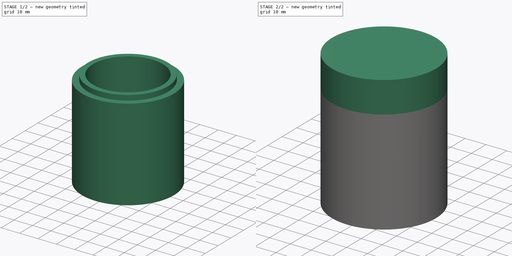
[diagram: build sequence overview — one tinted view per stage of 2, left to right]
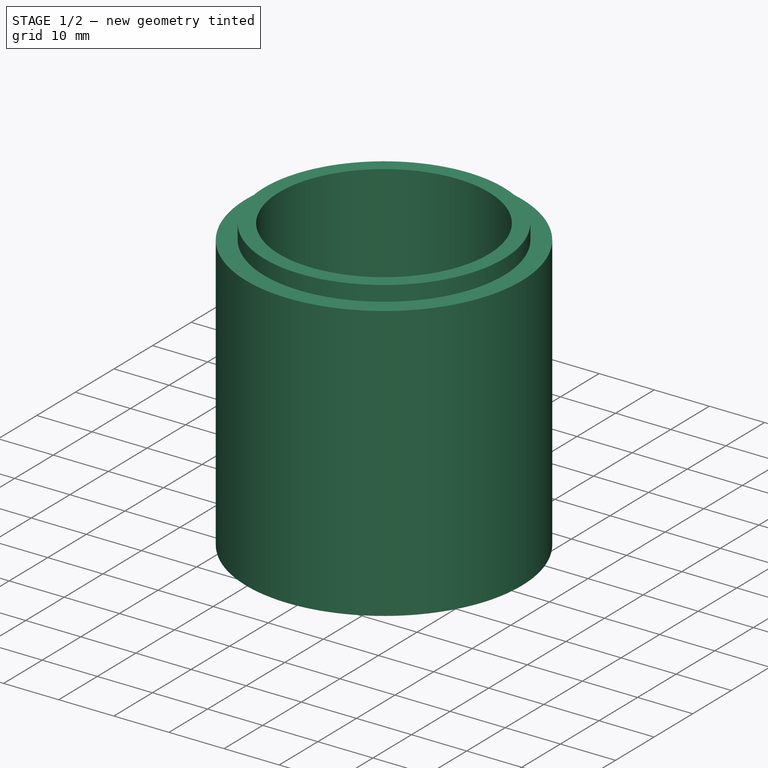
[diagram: stage 1 of 2 — iso view after this stage's code; geometry added in this stage tinted green]
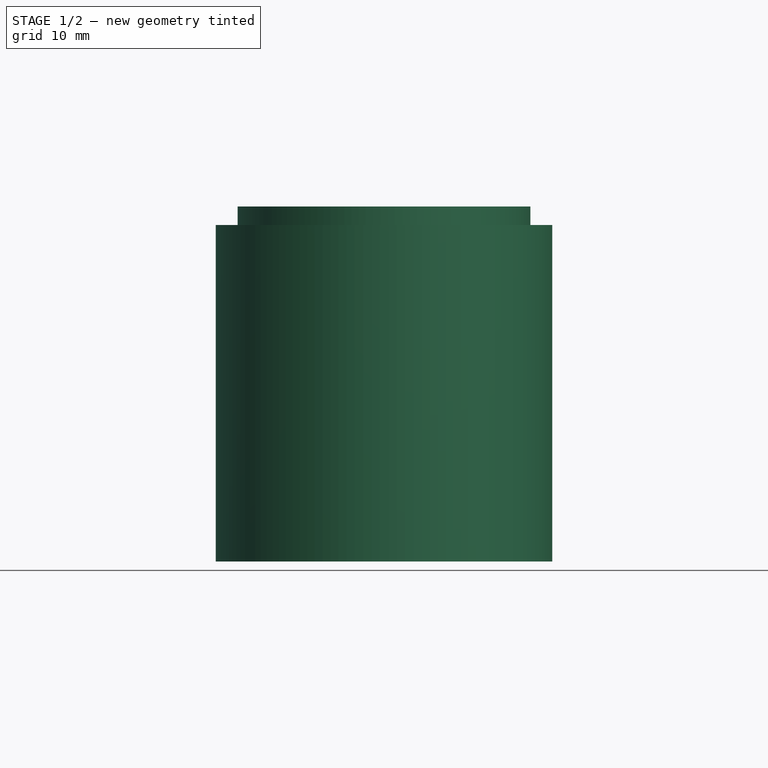
[diagram: stage 1 of 2 — front view after this stage's code; geometry added in this stage tinted green]
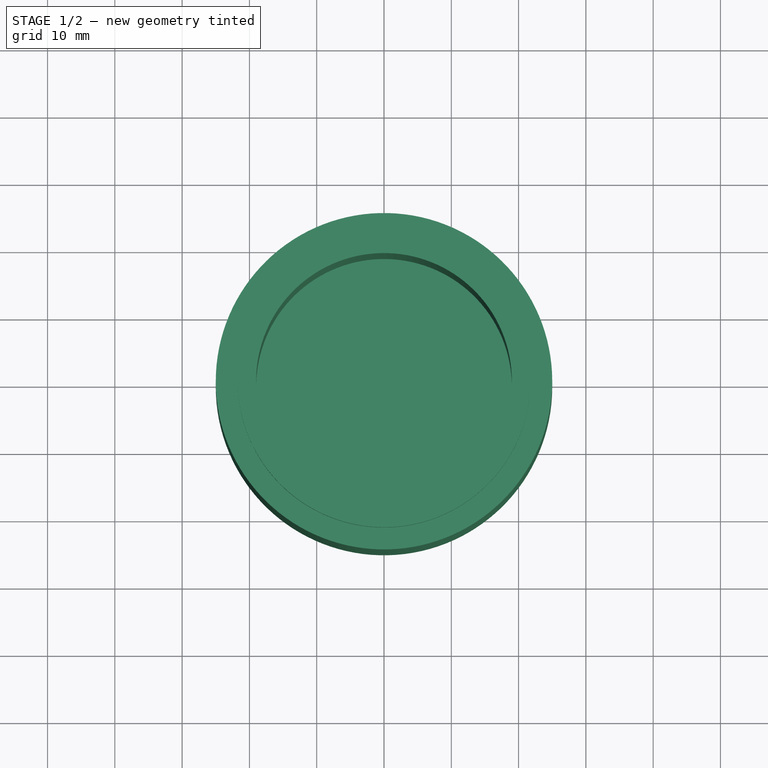
[diagram: stage 1 of 2 — top view after this stage's code; geometry added in this stage tinted green]
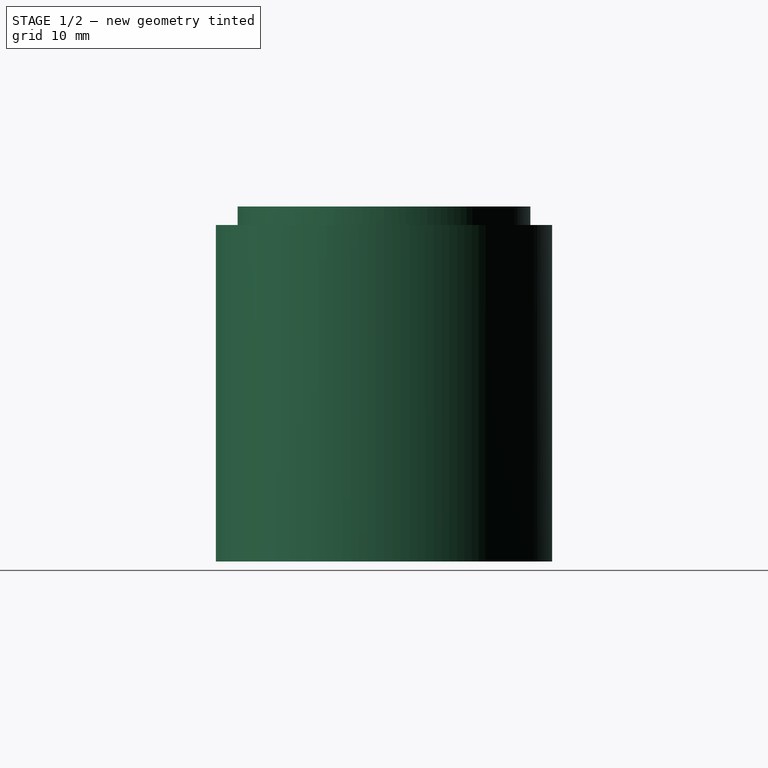
[diagram: stage 1 of 2 — right view after this stage's code; geometry added in this stage tinted green]
FCSTD DOCUMENT  (FreeCAD 0.21RUnknown)
Label: part9
License: All rights reserved
LicenseURL: http://en.wikipedia.org/wiki/All_rights_reserved
objects: PartDesign::Body×4, Sketcher::SketchObject×2, PartDesign::Revolution×2, PartDesign::FeatureBase×2, PartDesign::SubShapeBinder×1
note: 13 computed .brp shape members not serialized (recipe doc carries the construction recipe); baked Part::Feature solids carry a one-line shape summary decoded from their .brp

FEATURE [Sketcher::SketchObject] Sketch
  FullyConstrained = true
  MapMode = 5
  Placement = pos=(0,0,0) rot=(1,0,0;1.5708rad)
  Support = -> [XZ_Plane]
  sketch-geometry (8):
    g0: LineSegment StartX=0 StartY=15 StartZ=0 EndX=-25 EndY=15 EndZ=0
    g1: LineSegment StartX=-25 StartY=15 StartZ=0 EndX=-25 EndY=0 EndZ=0
    g2: LineSegment StartX=-25 StartY=0 StartZ=0 EndX=-22 EndY=0 EndZ=0
    g3: LineSegment StartX=-22 StartY=0 StartZ=0 EndX=-22 EndY=3 EndZ=0
    g4: LineSegment StartX=-22 StartY=3 StartZ=0 EndX=-19 EndY=3 EndZ=0
    g5: LineSegment StartX=-19 StartY=3 StartZ=0 EndX=-19 EndY=13 EndZ=0
    g6: LineSegment StartX=-19 StartY=13 StartZ=0 EndX=0 EndY=13 EndZ=0
    g7: LineSegment StartX=0 StartY=13 StartZ=0 EndX=0 EndY=15 EndZ=0
  constraints (24):
    c: PointOnObject(g0,g-2)
    c: Horizontal(g0)
    c: Coincident(g0,g1)
    c: Vertical(g1)
    c: Coincident(g1,g2)
    c: Horizontal(g2)
    c: Coincident(g2,g3)
    c: Vertical(g3)
    c: Coincident(g3,g4)
    c: Horizontal(g4)
    c: Coincident(g4,g5)
    c: Coincident(g5,g6)
    c: PointOnObject(g6,g-2)
    c: Horizontal(g6)
    c: Coincident(g6,g7)
    c: Coincident(g7,g0)
    c: Vertical(g5)
    c: PointOnObject(g1,g-1)
    c: DistanceX(g0,g0) = 25
    c: DistanceY(g1,g1) = 15
    c: Equal(g2,g4)
    c: Equal(g3,g4)
    c: DistanceX(g2,g2) = 3
    c: DistanceY(g7,g7) = 2
FEATURE [PartDesign::Revolution] Revolution
  Angle = 360
  Axis = (0,2e-16,1)
  Base = (0,0,0)
  Placement = pos=(0,0,0) rot=(1,0,0;1.5708rad)
  Profile = -> Sketch
  ReferenceAxis = -> Sketch [V_Axis]
FEATURE [PartDesign::Body] Body  label="top"
  Group = -> [Sketch,Revolution]
  Origin = -> Origin
  Tip = -> Revolution
FEATURE [PartDesign::SubShapeBinder] Binder
  BindCopyOnChange = 0
  BindMode = 0
  ClaimChildren = false
  Context = -> Body001 [Binder.]
  Fuse = false
  MakeFace = true
  OffsetFill = false
  OffsetIntersection = false
  OffsetJoinType = 0
  OffsetOpenResult = false
  PartialLoad = false
  Relative = true
  Support = -> [Body[Sketch.Edge3,Sketch.Edge4,Sketch.Edge5]]
  _Version = 2
FEATURE [Sketcher::SketchObject] Sketch001
  ExternalGeometry = -> [Binder]
  FullyConstrained = true
  MapMode = 5
  Placement = pos=(0,0,0) rot=(1,0,0;1.5708rad)
  Support = -> [XZ_Plane001]
  sketch-geometry (8):
    g0: LineSegment StartX=0 StartY=-50 StartZ=0 EndX=-25 EndY=-50 EndZ=0
    g1: LineSegment StartX=-25 StartY=-50 StartZ=0 EndX=-25 EndY=0 EndZ=0
    g2: LineSegment StartX=-25 StartY=0 StartZ=0 EndX=-21.75 EndY=0 EndZ=0
    g3: LineSegment StartX=-21.75 StartY=0 StartZ=0 EndX=-21.75 EndY=2.75 EndZ=0
    g4: LineSegment StartX=-21.75 StartY=2.75 StartZ=0 EndX=-19 EndY=2.75 EndZ=0
    g5: LineSegment StartX=-19 StartY=2.75 StartZ=0 EndX=-19 EndY=-48 EndZ=0
    g6: LineSegment StartX=-19 StartY=-48 StartZ=0 EndX=0 EndY=-48 EndZ=0
    g7: LineSegment StartX=0 StartY=-48 StartZ=0 EndX=0 EndY=-50 EndZ=0
  constraints (23):
    c: PointOnObject(g0,g-2)
    c: Horizontal(g0)
    c: Coincident(g0,g1)
    c: Coincident(g1,g-5)
    c: Vertical(g1)
    c: Coincident(g1,g2)
    c: PointOnObject(g2,g-1)
    c: Coincident(g2,g3)
    c: Coincident(g3,g4)
    c: Horizontal(g4)
    c: Coincident(g4,g5)
    c: Vertical(g5)
    c: Coincident(g5,g6)
    c: PointOnObject(g6,g-2)
    c: Horizontal(g6)
    c: Coincident(g6,g7)
    c: Coincident(g7,g0)
    c: DistanceX(g-5,g2) = 0.25
    c: Vertical(g3)
    c: DistanceY(g3,g-4) = 0.25
    c: DistanceY(g1,g1) = 50
    c: Vertical(g4,g-3)
    c: DistanceY(g7,g7) = 2
FEATURE [PartDesign::Revolution] Revolution001
  Angle = 360
  Axis = (0,2e-16,1)
  Base = (0,0,0)
  Placement = pos=(0,0,0) rot=(1,0,0;1.5708rad)
  Profile = -> Sketch001
  ReferenceAxis = -> Sketch001 [V_Axis]
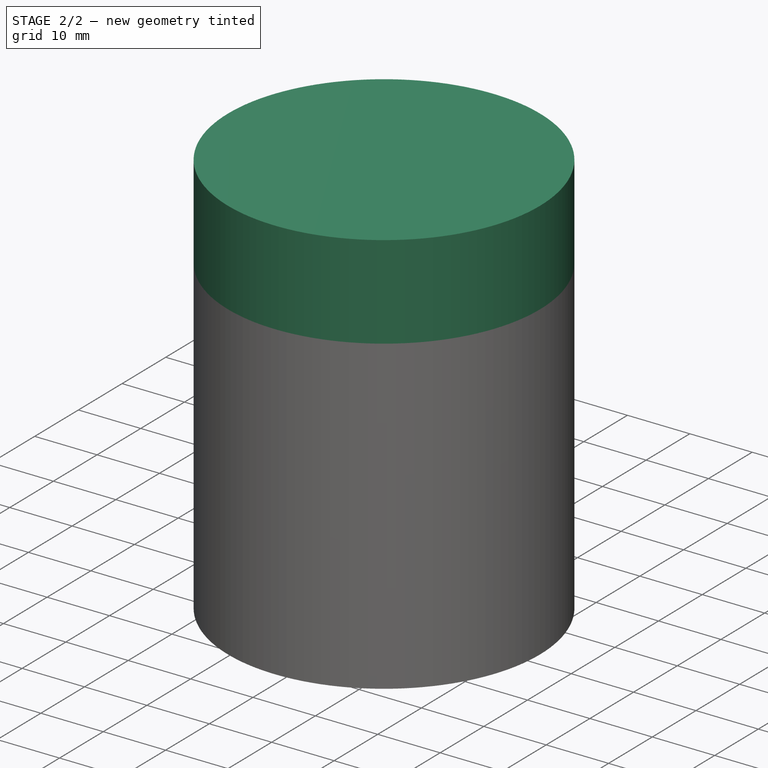
[diagram: stage 2 of 2 — iso view after this stage's code; geometry added in this stage tinted green]
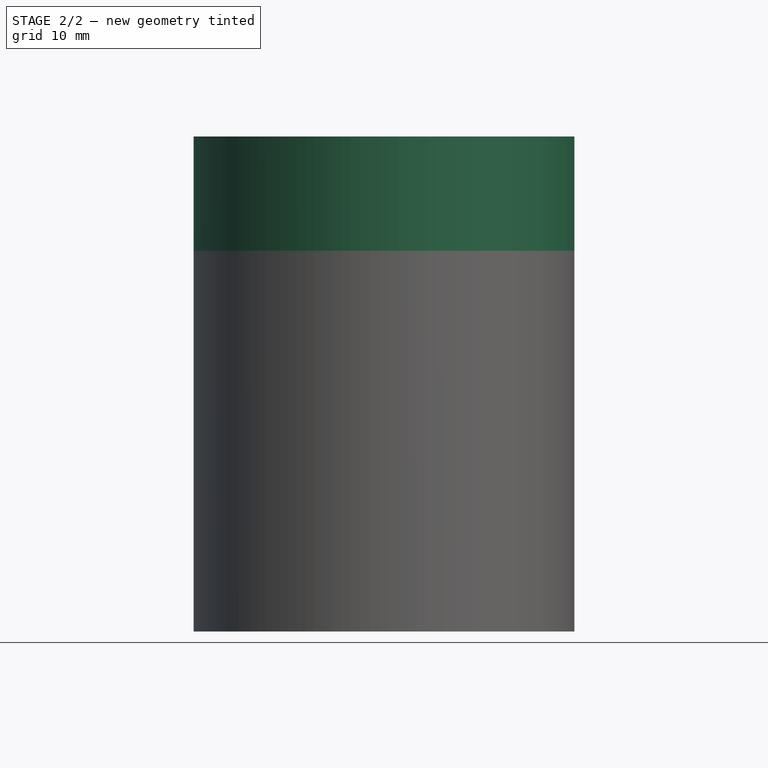
[diagram: stage 2 of 2 — front view after this stage's code; geometry added in this stage tinted green]
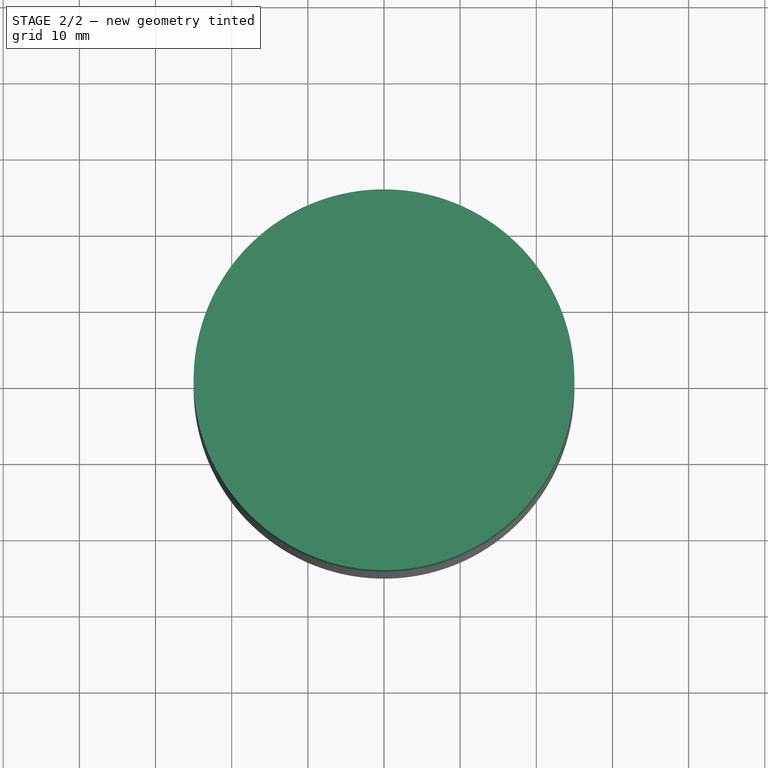
[diagram: stage 2 of 2 — top view after this stage's code; geometry added in this stage tinted green]
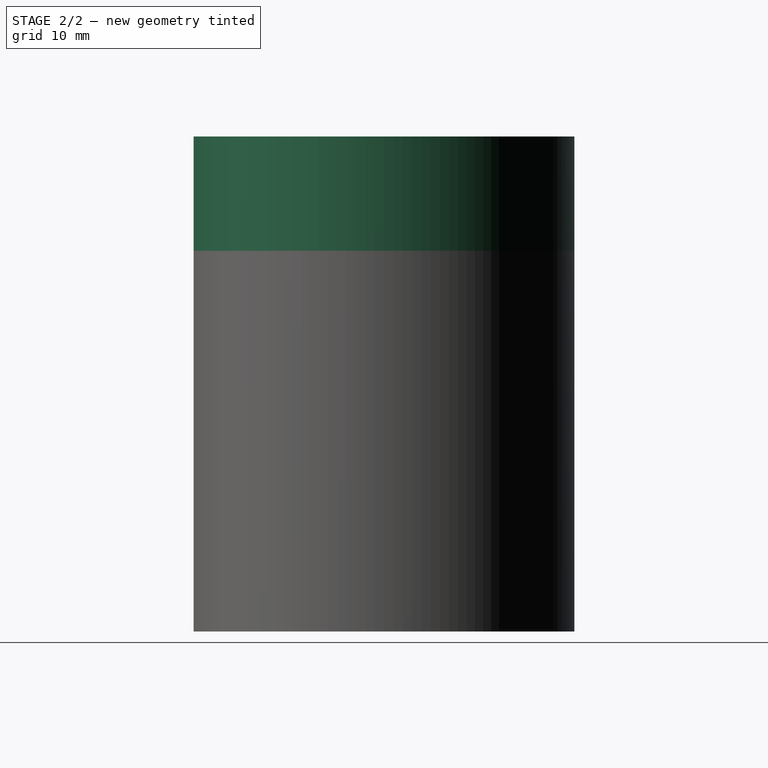
[diagram: stage 2 of 2 — right view after this stage's code; geometry added in this stage tinted green]
FEATURE [PartDesign::Body] Body001  label="bottom"
  Group = -> [Sketch001,Binder,Revolution001]
  Origin = -> Origin001
  Tip = -> Revolution001
FEATURE [PartDesign::FeatureBase] Clone
  BaseFeature = -> Body
FEATURE [PartDesign::Body] Body002  label="Body002 clone"
  Group = -> [Clone]
  Origin = -> Origin002
  Placement = pos=(68.5924,0,18.8924) rot=(0,1,0;0.785398rad)
  Tip = -> Clone
FEATURE [PartDesign::FeatureBase] Clone001
  BaseFeature = -> Body001
FEATURE [PartDesign::Body] Body003  label="Body003 clone"
  Group = -> [Clone001]
  Origin = -> Origin003
  Placement = pos=(59.5,0,0) rot=(0,0,1;0rad)
  Tip = -> Clone001
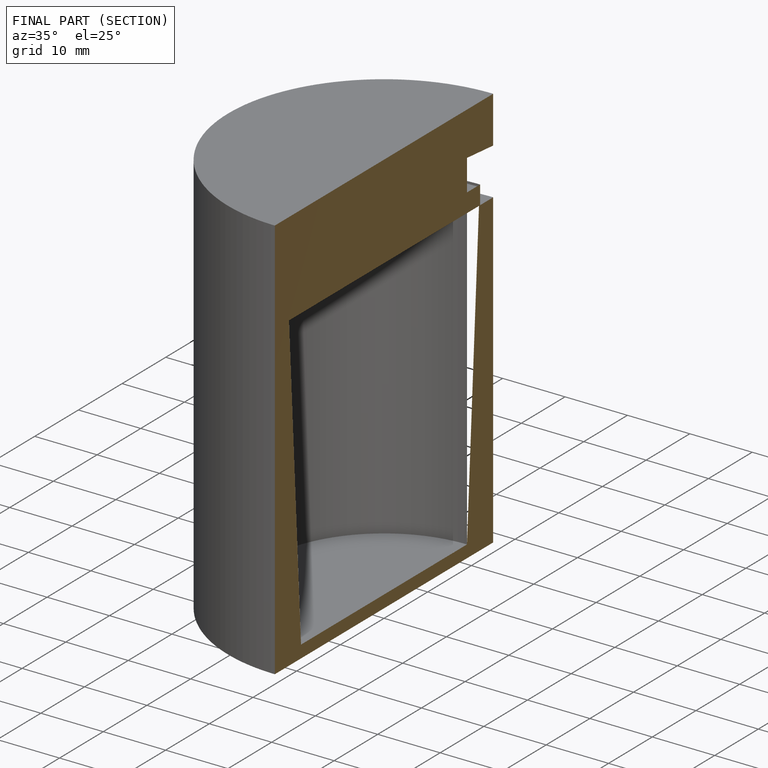
[diagram: finished part — half-section view (interior)]
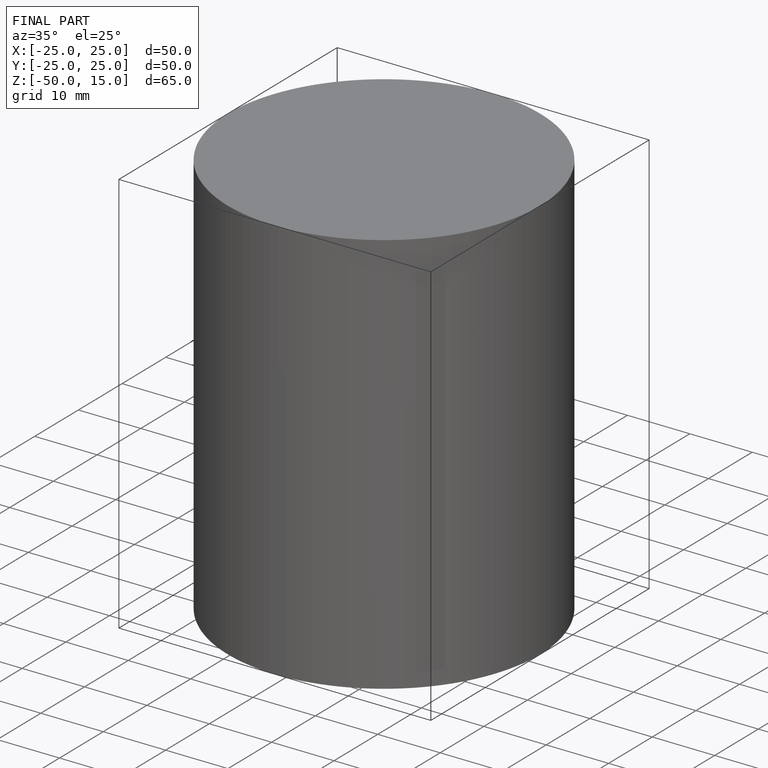
[diagram: finished part — iso view with bounding-box wireframe]
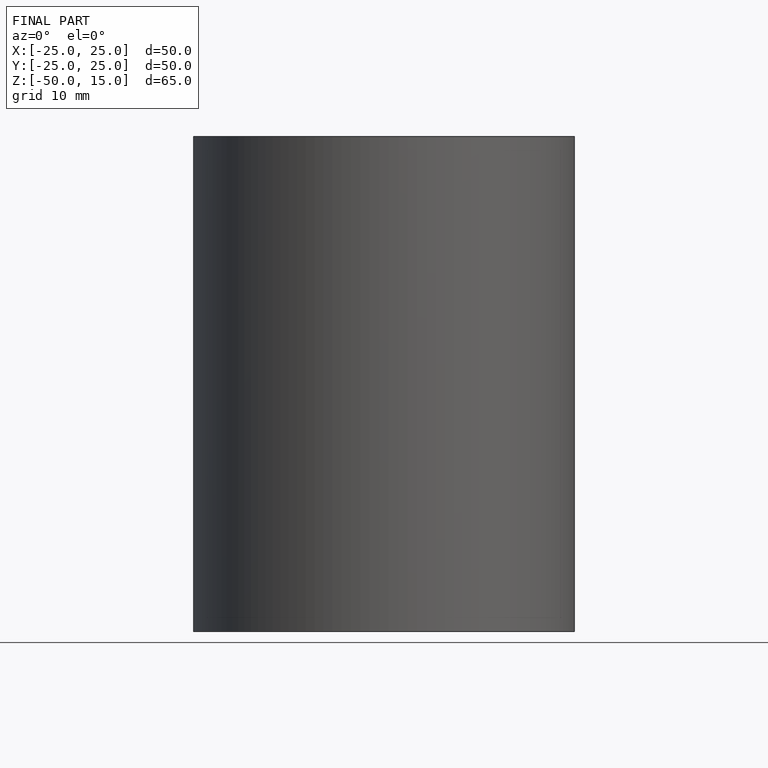
[diagram: finished part — front view with bounding-box wireframe]
